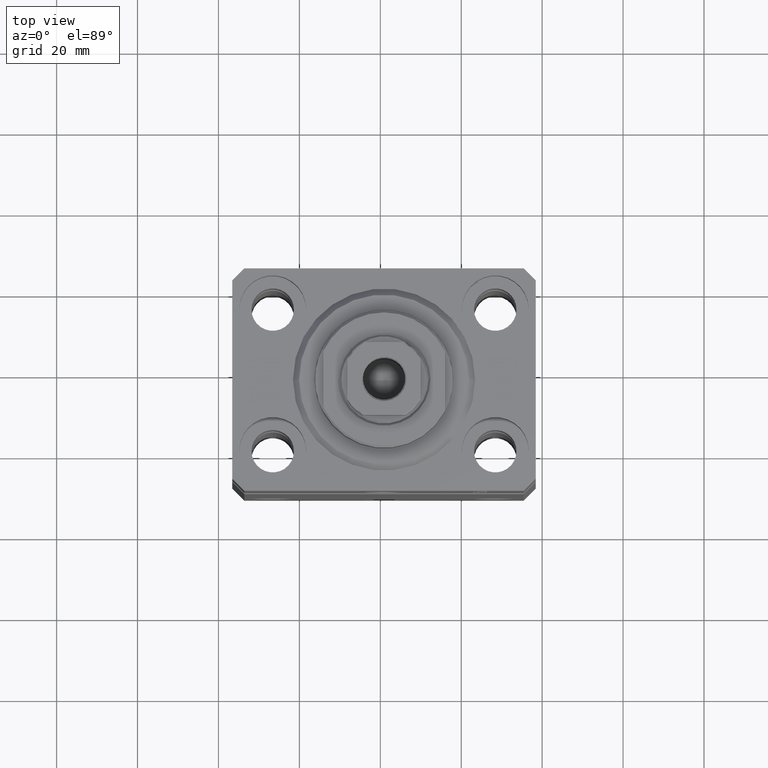
[diagram: clean part render]
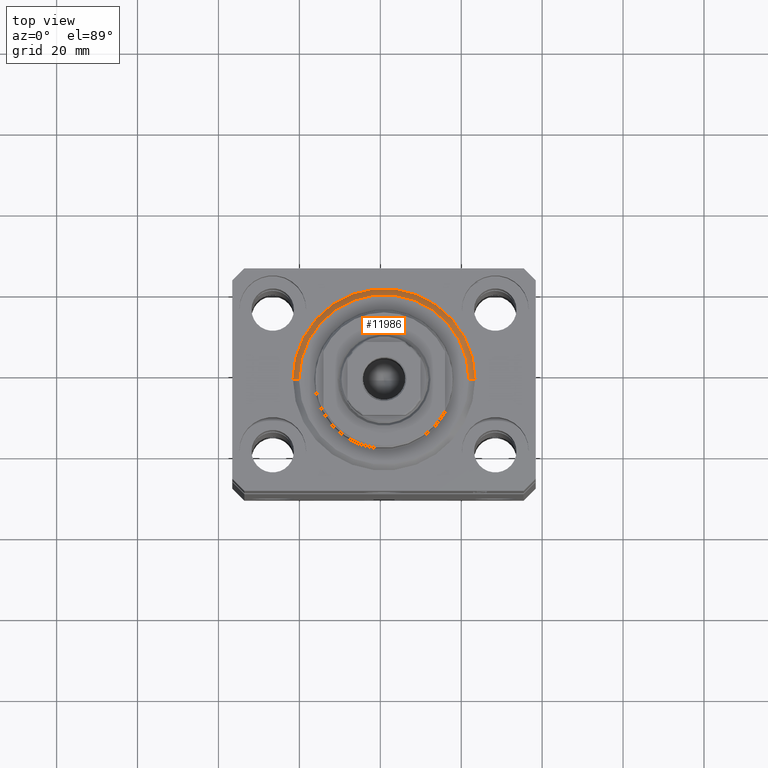
[diagram: same view with one face highlighted and labeled with its STEP entity id]
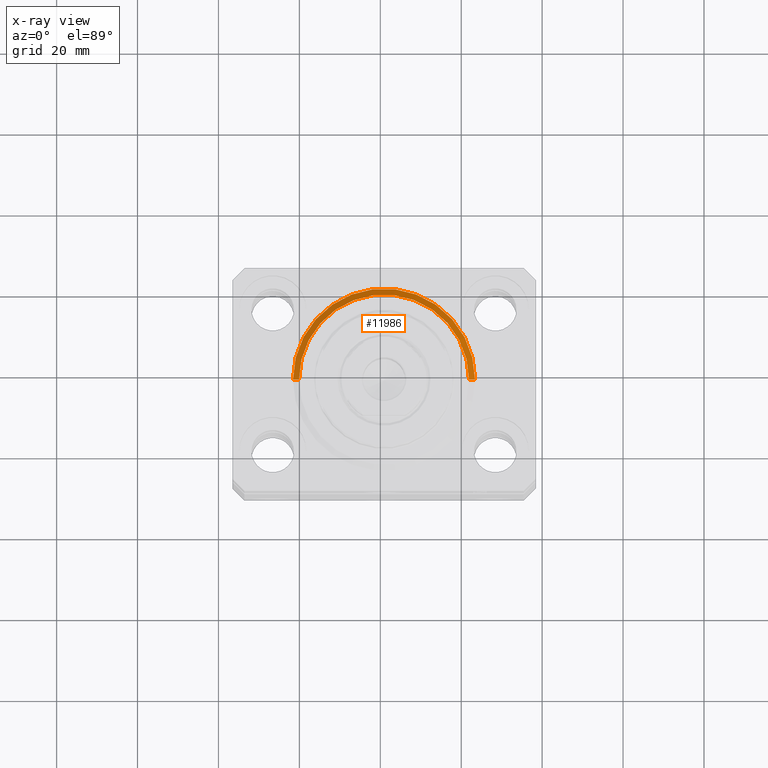
[diagram: x-ray of the same camera — body ghosted, the highlighted face saturated]
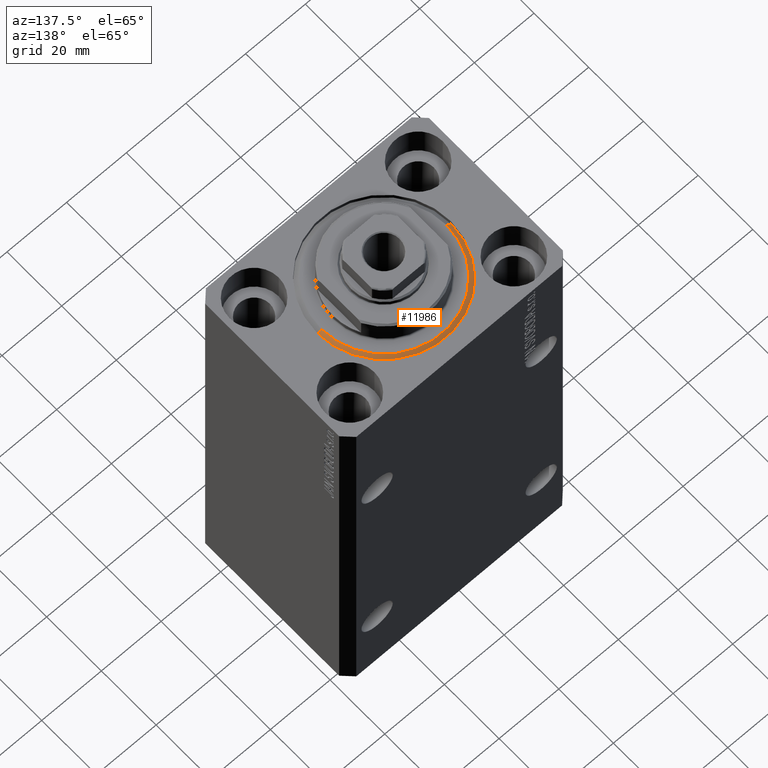
[diagram: same view with one face highlighted and labeled with its STEP entity id]
A machine part, top view. The second image highlights one B-rep face of the part: STEP entity #11986.
The next image is the same camera in x-ray: the body ghosted, the highlighted face saturated — about 0% of this face is hidden behind the body in this view.
A second angle (auxiliary view) of the same face is appended — the face is thin or edge-on in the first view.
In plain terms, the highlighted conical surface has half-angle 45 deg.
Its self-contained STEP definition (entity closure, byte-faithful):
#2387 = CIRCLE ( 'NONE', #39158, 22.50000000000000355 ) ;
#3610 = EDGE_CURVE ( 'NONE', #34341, #20084, #31315, .T. ) ;
#5072 = DIRECTION ( 'NONE',  ( -0.000000000000000000, -0.000000000000000000, -1.000000000000000000 ) ) ;
#5874 = CIRCLE ( 'NONE', #41884, 20.99999999999998934 ) ;
#6864 = DIRECTION ( 'NONE',  ( -0.000000000000000000, -0.000000000000000000, 1.000000000000000000 ) ) ;
#9722 = EDGE_CURVE ( 'NONE', #10142, #32837, #27667, .T. ) ;
#10142 = VERTEX_POINT ( 'NONE', #28514 ) ;
#11986 = ADVANCED_FACE ( 'NONE', ( #23802 ), #17932, .T. ) ;
#13483 = EDGE_LOOP ( 'NONE', ( #37674, #43418, #43416, #33437 ) ) ;
#17290 = CARTESIAN_POINT ( 'NONE',  ( -22.50000000000000355, 0.000000000000000000, 1.500000000000001332 ) ) ;
#17932 = CONICAL_SURFACE ( 'NONE', #28771, 22.50000000000000355, 0.7853981633974517207 ) ;
#19874 = VECTOR ( 'NONE', #37874, 1000.000000000000114 ) ;
#20084 = VERTEX_POINT ( 'NONE', #17290 ) ;
#21590 = DIRECTION ( 'NONE',  ( -0.000000000000000000, -0.000000000000000000, 1.000000000000000000 ) ) ;
#23135 = EDGE_CURVE ( 'NONE', #34341, #10142, #5874, .T. ) ;
#23575 = CARTESIAN_POINT ( 'NONE',  ( 0.000000000000000000, 0.000000000000000000, 1.500000000000001332 ) ) ;
#23802 = FACE_OUTER_BOUND ( 'NONE', #13483, .T. ) ;
#24361 = VECTOR ( 'NONE', #41414, 1000.000000000000114 ) ;
#27504 = CARTESIAN_POINT ( 'NONE',  ( -22.50000000000000355, 2.755455298081545172E-15, 1.500000000000001332 ) ) ;
#27667 = LINE ( 'NONE', #44360, #24361 ) ;
#27836 = EDGE_CURVE ( 'NONE', #32837, #20084, #2387, .T. ) ;
#28514 = CARTESIAN_POINT ( 'NONE',  ( 20.99999999999998934, 0.000000000000000000, 0.000000000000000000 ) ) ;
#28771 = AXIS2_PLACEMENT_3D ( 'NONE', #23575, #6864, #30786 ) ;
#29240 = CARTESIAN_POINT ( 'NONE',  ( 0.000000000000000000, 0.000000000000000000, 1.500000000000001332 ) ) ;
#30786 = DIRECTION ( 'NONE',  ( 1.000000000000000000, 0.000000000000000000, 0.000000000000000000 ) ) ;
#31315 = LINE ( 'NONE', #27504, #19874 ) ;
#31961 = DIRECTION ( 'NONE',  ( 1.000000000000000000, 0.000000000000000000, 0.000000000000000000 ) ) ;
#32837 = VERTEX_POINT ( 'NONE', #41917 ) ;
#33437 = ORIENTED_EDGE ( 'NONE', *, *, #9722, .F. ) ;
#34341 = VERTEX_POINT ( 'NONE', #41373 ) ;
#35318 = DIRECTION ( 'NONE',  ( 1.000000000000000000, 0.000000000000000000, 0.000000000000000000 ) ) ;
#37674 = ORIENTED_EDGE ( 'NONE', *, *, #23135, .F. ) ;
#37874 = DIRECTION ( 'NONE',  ( -0.7071067811865500152, 8.659560562354963673E-17, 0.7071067811865451302 ) ) ;
#39158 = AXIS2_PLACEMENT_3D ( 'NONE', #29240, #21590, #31961 ) ;
#39376 = CARTESIAN_POINT ( 'NONE',  ( 0.000000000000000000, 0.000000000000000000, 0.000000000000000000 ) ) ;
#41373 = CARTESIAN_POINT ( 'NONE',  ( -20.99999999999998934, 2.663606788145492628E-15, 0.000000000000000000 ) ) ;
#41414 = DIRECTION ( 'NONE',  ( 0.7071067811865500152, 0.000000000000000000, 0.7071067811865451302 ) ) ;
#41884 = AXIS2_PLACEMENT_3D ( 'NONE', #39376, #5072, #35318 ) ;
#41917 = CARTESIAN_POINT ( 'NONE',  ( 22.50000000000000355, 2.755455298081545172E-15, 1.500000000000001332 ) ) ;
#43416 = ORIENTED_EDGE ( 'NONE', *, *, #27836, .F. ) ;
#43418 = ORIENTED_EDGE ( 'NONE', *, *, #3610, .T. ) ;
#44360 = CARTESIAN_POINT ( 'NONE',  ( 22.50000000000000355, 0.000000000000000000, 1.500000000000001332 ) ) ;